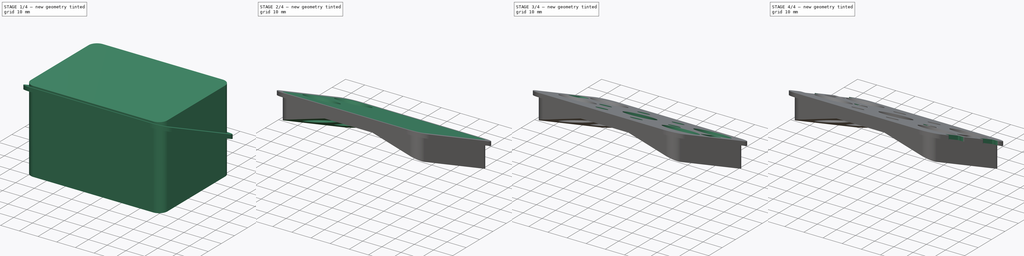
[diagram: build sequence overview — one tinted view per stage of 4, left to right]
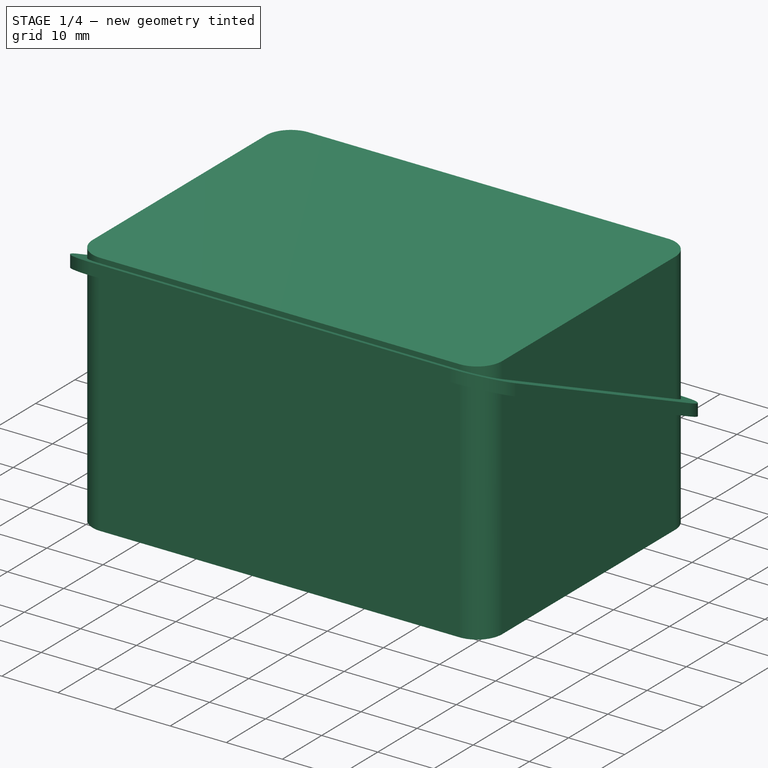
[diagram: stage 1 of 4 — iso view after this stage's code; geometry added in this stage tinted green]
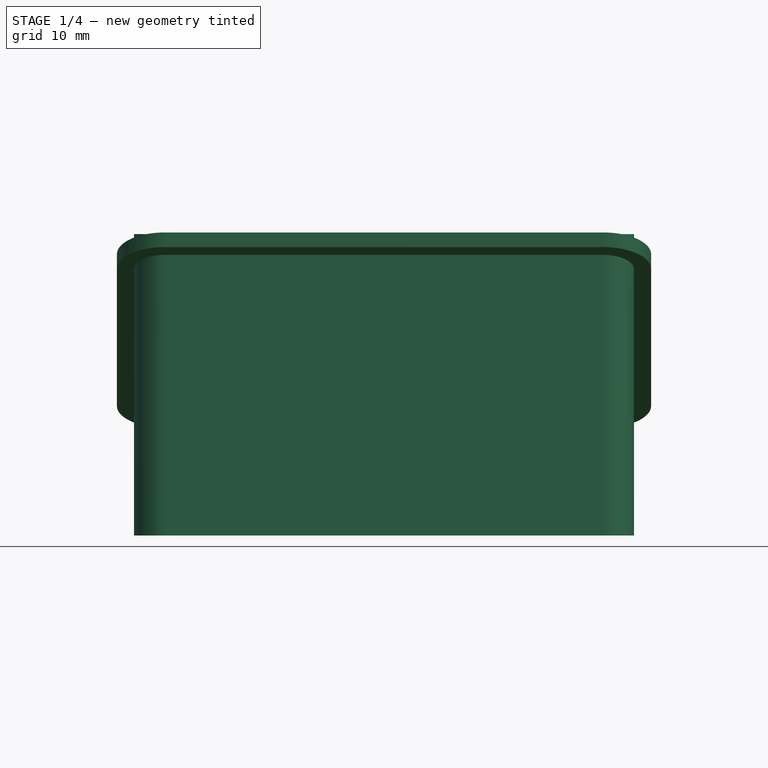
[diagram: stage 1 of 4 — front view after this stage's code; geometry added in this stage tinted green]
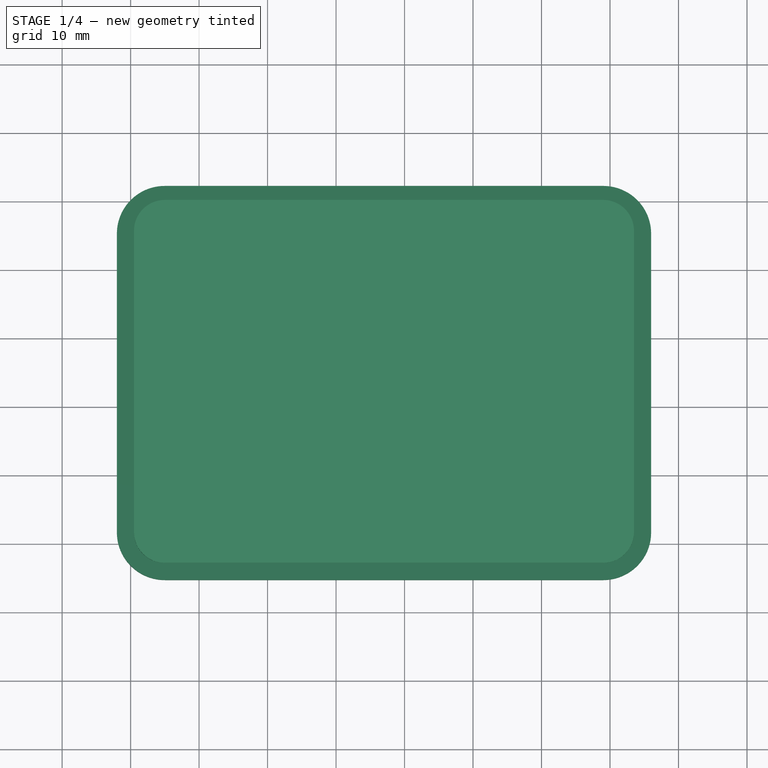
[diagram: stage 1 of 4 — top view after this stage's code; geometry added in this stage tinted green]
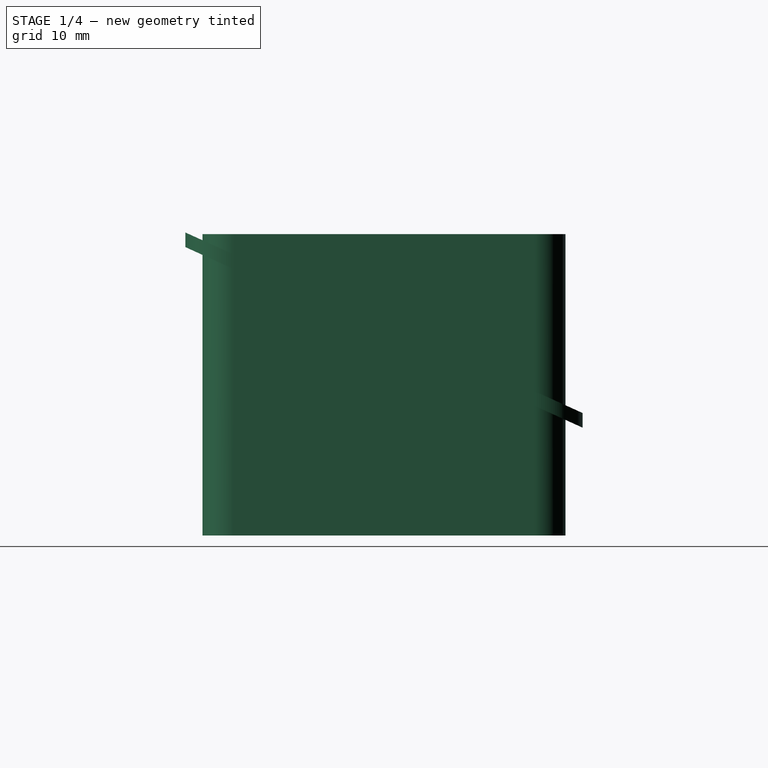
[diagram: stage 1 of 4 — right view after this stage's code; geometry added in this stage tinted green]
FCSTD DOCUMENT  (FreeCAD 0.18R4 (GitTag))
Label: Sensormount
License: CreativeCommons Attribution-NonCommercial
LicenseURL: http://creativecommons.org/licenses/by-nc/4.0/
objects: Sketcher::SketchObject×12, PartDesign::Pocket×10, PartDesign::Pad×2, PartDesign::Plane×1, PartDesign::Fillet×1, PartDesign::Body×1
note: 39 computed .brp shape members not serialized (recipe doc carries the construction recipe); baked Part::Feature solids carry a one-line shape summary decoded from their .brp

FEATURE [Sketcher::SketchObject] Sketch074
  AttachmentOffset = pos=(0,0,44.25) rot=(0,0,1;0rad)
  MapMode = 5
  Placement = pos=(0,0,44.25) rot=(0,0,1;0rad)
  Support = -> [XY_Plane018]
  sketch-geometry (8):
    g0: LineSegment StartX=25 StartY=4 StartZ=0 EndX=89 EndY=4 EndZ=0
    g1: LineSegment StartX=96 StartY=11 StartZ=0 EndX=96 EndY=55 EndZ=0
    g2: LineSegment StartX=89 StartY=62 StartZ=0 EndX=25 EndY=62 EndZ=0
    g3: LineSegment StartX=18 StartY=55 StartZ=0 EndX=18 EndY=11 EndZ=0
    g4: ArcOfCircle CenterX=25 CenterY=55 CenterZ=0 NormalX=0 NormalY=0 NormalZ=1 AngleXU=0 Radius=7 StartAngle=1.5708 EndAngle=3.14159
    g5: ArcOfCircle CenterX=89 CenterY=55 CenterZ=0 NormalX=0 NormalY=0 NormalZ=1 AngleXU=0 Radius=7 StartAngle=0 EndAngle=1.5708
    g6: ArcOfCircle CenterX=89 CenterY=11 CenterZ=0 NormalX=0 NormalY=0 NormalZ=1 AngleXU=0 Radius=7 StartAngle=4.71239 EndAngle=6.28319
    g7: ArcOfCircle CenterX=25 CenterY=11 CenterZ=0 NormalX=0 NormalY=0 NormalZ=1 AngleXU=0 Radius=7 StartAngle=3.14159 EndAngle=4.71239
  constraints (20):
    c: Horizontal(g0)
    c: Horizontal(g2)
    c: Vertical(g1)
    c: Vertical(g3)
    c: Tangent(g3,g4) = -1.5708
    c: Tangent(g2,g4) = -1.5708
    c: Tangent(g2,g5) = -1.5708
    c: Tangent(g1,g5) = -1.5708
    c: Tangent(g1,g6) = -1.5708
    c: Tangent(g0,g6) = -1.5708
    c: Tangent(g0,g7) = -1.5708
    c: Tangent(g3,g7) = -1.5708
    c: Radius(g4) = 7
    c: Equal(g4,g5)
    c: Equal(g5,g6)
    c: Equal(g6,g7)
    c: DistanceX(g3,g1) = 78
    c: DistanceY(g0,g2) = 58
    c: DistanceX(g-1,g7) = 25
    c: DistanceY(g-1,g7) = 11
FEATURE [Sketcher::SketchObject] Sketch076
  MapMode = 5
  Support = -> [XY_Plane018]
  sketch-geometry (8):
    g0: ArcOfCircle CenterX=25 CenterY=11 CenterZ=0 NormalX=0 NormalY=0 NormalZ=1 AngleXU=0 Radius=4.5 StartAngle=3.14159 EndAngle=4.71239
    g1: ArcOfCircle CenterX=25 CenterY=55 CenterZ=0 NormalX=0 NormalY=0 NormalZ=1 AngleXU=0 Radius=4.5 StartAngle=1.5708 EndAngle=3.14159
    g2: ArcOfCircle CenterX=89 CenterY=55 CenterZ=0 NormalX=0 NormalY=0 NormalZ=1 AngleXU=0 Radius=4.5 StartAngle=7e-16 EndAngle=1.5708
    g3: ArcOfCircle CenterX=89 CenterY=11 CenterZ=0 NormalX=0 NormalY=0 NormalZ=1 AngleXU=0 Radius=4.5 StartAngle=4.71239 EndAngle=6.28319
    g4: LineSegment StartX=25 StartY=59.5 StartZ=0 EndX=89 EndY=59.5 EndZ=0
    g5: LineSegment StartX=20.5 StartY=55 StartZ=0 EndX=20.5 EndY=11 EndZ=0
    g6: LineSegment StartX=25 StartY=6.5 StartZ=0 EndX=89 EndY=6.5 EndZ=0
    g7: LineSegment StartX=93.5 StartY=11 StartZ=0 EndX=93.5 EndY=55 EndZ=0
  constraints (20):
    c: Horizontal(g4)
    c: Vertical(g5)
    c: Horizontal(g6)
    c: Vertical(g7)
    c: Equal(g1,g2)
    c: Equal(g2,g3)
    c: Equal(g3,g0)
    c: Radius(g2) = 4.5
    c: Tangent(g7,g2) = -1.5708
    c: Tangent(g1,g4) = 1.5708
    c: Tangent(g5,g1) = -1.5708
    c: Tangent(g4,g2) = 1.5708
    c: Tangent(g7,g3) = -1.5708
    c: Tangent(g6,g3) = -1.5708
    c: Tangent(g5,g0) = -1.5708
    c: Tangent(g6,g0) = -1.5708
    c: DistanceX(g4,g4) = 64
    c: DistanceY(g7,g7) = 44
    c: DistanceX(g-1,g0) = 25
    c: DistanceY(g-1,g0) = 11
FEATURE [Sketcher::SketchObject] Sketch103
  AttachmentOffset = pos=(0,0,32) rot=(0,0,1;0rad)
  MapMode = 5
  Placement = pos=(0,0,32) rot=(0,0,1;0rad)
  Support = -> [XY_Plane018]
  sketch-geometry (9):
    g0: LineSegment [constr] StartX=66 StartY=48.5885 StartZ=0 EndX=48 EndY=48.5885 EndZ=0
    g1: LineSegment [constr] StartX=48 StartY=48.5885 StartZ=0 EndX=39 EndY=33 EndZ=0
    g2: LineSegment [constr] StartX=39 StartY=33 StartZ=0 EndX=48 EndY=17.4115 EndZ=0
    g3: LineSegment [constr] StartX=48 StartY=17.4115 StartZ=0 EndX=66 EndY=17.4115 EndZ=0
    g4: LineSegment [constr] StartX=66 StartY=17.4115 StartZ=0 EndX=75 EndY=33 EndZ=0
    g5: LineSegment [constr] StartX=75 StartY=33 StartZ=0 EndX=66 EndY=48.5885 EndZ=0
    g6: Circle [constr] CenterX=57 CenterY=33 CenterZ=0 NormalX=0 NormalY=0 NormalZ=1 AngleXU=0 Radius=18
    g7: Circle CenterX=39 CenterY=33 CenterZ=0 NormalX=0 NormalY=0 NormalZ=1 AngleXU=0 Radius=3.2
    g8: Circle CenterX=75 CenterY=33 CenterZ=0 NormalX=0 NormalY=0 NormalZ=1 AngleXU=0 Radius=3.2
  constraints (21):
    c: Coincident(g0,g1)
    c: Coincident(g1,g2)
    c: Coincident(g2,g3)
    c: Coincident(g3,g4)
    c: Coincident(g4,g5)
    c: Coincident(g5,g0)
    c: Equal(g0, g1-g5) x5
    c: PointOnObject(g0,g6)
    c: PointOnObject(g1,g6)
    c: PointOnObject(g2,g6)
    c: PointOnObject(g3,g6)
    c: PointOnObject(g4,g6)
    c: PointOnObject(g5,g6)
    c: Horizontal(g0)
    c: DistanceX(g0,g0) = 18
    c: DistanceX(g-1,g6) = 57
    c: DistanceY(g-1,g6) = 33
    c: Coincident(g7,g1)
    c: Coincident(g8,g4)
    c: Radius(g8) = 3.2
    c: Equal(g8,g7)
FEATURE [Sketcher::SketchObject] Sketch083
  MapMode = 5
  Support = -> [XY_Plane018]
  sketch-geometry (14):
    g0: Circle CenterX=57 CenterY=33 CenterZ=0 NormalX=0 NormalY=0 NormalZ=1 AngleXU=0 Radius=7.5
    g1: LineSegment [constr] StartX=48 StartY=48.5885 StartZ=0 EndX=39 EndY=33 EndZ=0
    g2: LineSegment [constr] StartX=39 StartY=33 StartZ=0 EndX=48 EndY=17.4115 EndZ=0
    g3: LineSegment [constr] StartX=48 StartY=17.4115 StartZ=0 EndX=66 EndY=17.4115 EndZ=0
    g4: LineSegment [constr] StartX=66 StartY=17.4115 StartZ=0 EndX=75 EndY=33 EndZ=0
    g5: LineSegment [constr] StartX=75 StartY=33 StartZ=0 EndX=66 EndY=48.5885 EndZ=0
    g6: LineSegment [constr] StartX=66 StartY=48.5885 StartZ=0 EndX=48 EndY=48.5885 EndZ=0
    g7: Circle [constr] CenterX=57 CenterY=33 CenterZ=0 NormalX=0 NormalY=0 NormalZ=1 AngleXU=0 Radius=18
    g8: Circle CenterX=48 CenterY=48.5885 CenterZ=0 NormalX=0 NormalY=0 NormalZ=1 AngleXU=0 Radius=2.75
    g9: Circle CenterX=66 CenterY=48.5885 CenterZ=0 NormalX=0 NormalY=0 NormalZ=1 AngleXU=0 Radius=2.75
    g10: Circle CenterX=75 CenterY=33 CenterZ=0 NormalX=0 NormalY=0 NormalZ=1 AngleXU=0 Radius=2.75
    g11: Circle CenterX=39 CenterY=33 CenterZ=0 NormalX=0 NormalY=0 NormalZ=1 AngleXU=0 Radius=2.75
    g12: Circle CenterX=48 CenterY=17.4115 CenterZ=0 NormalX=0 NormalY=0 NormalZ=1 AngleXU=0 Radius=2.75
    g13: Circle CenterX=66 CenterY=17.4115 CenterZ=0 NormalX=0 NormalY=0 NormalZ=1 AngleXU=0 Radius=2.75
  constraints (31):
    c: DistanceY(g-1,g0) = 33
    c: DistanceX(g-1,g0) = 57
    c: Radius(g0) = 7.5
    c: Coincident(g1,g2)
    c: Coincident(g2,g3)
    c: Coincident(g3,g4)
    c: Coincident(g4,g5)
    c: Coincident(g5,g6)
    c: Coincident(g6,g1)
    c: Equal(g1, g2-g6) x5
    c: PointOnObject(g1,g7)
    c: PointOnObject(g2,g7)
    c: PointOnObject(g3,g7)
    c: PointOnObject(g4,g7)
    c: PointOnObject(g5,g7)
    c: PointOnObject(g6,g7)
    c: Coincident(g7,g0)
    c: DistanceX(g6,g6) = 18
    c: Coincident(g8,g1)
    c: Coincident(g9,g5)
    c: Coincident(g10,g4)
    c: Coincident(g11,g1)
    c: Coincident(g12,g2)
    c: Coincident(g13,g3)
    c: Equal(g10,g9)
    c: Equal(g9,g8)
    c: Equal(g8,g11)
    c: Equal(g11,g12)
    c: Equal(g12,g13)
    c: Radius(g10) = 2.75
    c: Horizontal(g6)
FEATURE [Sketcher::SketchObject] Sketch142
  AttachmentOffset = pos=(0,0,40) rot=(0,0,1;0rad)
  MapMode = 5
  Placement = pos=(0,0,40) rot=(0,0,1;0rad)
  Support = -> [XY_Plane018]
  sketch-geometry (24):
    g0: LineSegment StartX=18 StartY=17.4 StartZ=0 EndX=20 EndY=17.4 EndZ=0
    g1: LineSegment StartX=20.5 StartY=17.9 StartZ=0 EndX=20.5 EndY=26.9 EndZ=0
    g2: LineSegment StartX=20 StartY=27.4 StartZ=0 EndX=18 EndY=27.4 EndZ=0
    g3: LineSegment StartX=18 StartY=27.4 StartZ=0 EndX=18 EndY=17.4 EndZ=0
    g4: LineSegment StartX=18 StartY=43 StartZ=0 EndX=20 EndY=43 EndZ=0
    g5: LineSegment StartX=20.5 StartY=43.5 StartZ=0 EndX=20.5 EndY=52.5 EndZ=0
    g6: LineSegment StartX=20 StartY=53 StartZ=0 EndX=18 EndY=53 EndZ=0
    g7: LineSegment StartX=18 StartY=53 StartZ=0 EndX=18 EndY=43 EndZ=0
    g8: LineSegment StartX=96 StartY=53 StartZ=0 EndX=94 EndY=53 EndZ=0
    g9: LineSegment StartX=93.5 StartY=52.5 StartZ=0 EndX=93.5 EndY=43.5 EndZ=0
    g10: LineSegment StartX=94 StartY=43 StartZ=0 EndX=96 EndY=43 EndZ=0
    g11: LineSegment StartX=96 StartY=43 StartZ=0 EndX=96 EndY=53 EndZ=0
    g12: LineSegment StartX=96 StartY=17.4 StartZ=0 EndX=94 EndY=17.4 EndZ=0
    g13: LineSegment StartX=93.5 StartY=17.9 StartZ=0 EndX=93.5 EndY=26.9 EndZ=0
    g14: LineSegment StartX=94 StartY=27.4 StartZ=0 EndX=96 EndY=27.4 EndZ=0
    g15: LineSegment StartX=96 StartY=27.4 StartZ=0 EndX=96 EndY=17.4 EndZ=0
    g16: ArcOfCircle CenterX=20 CenterY=26.9 CenterZ=0 NormalX=0 NormalY=0 NormalZ=1 AngleXU=0 Radius=0.5 StartAngle=0 EndAngle=1.5708
    g17: ArcOfCircle CenterX=20 CenterY=17.9 CenterZ=0 NormalX=0 NormalY=0 NormalZ=1 AngleXU=0 Radius=0.5 StartAngle=4.71239 EndAngle=6.28319
    g18: ArcOfCircle CenterX=20 CenterY=52.5 CenterZ=0 NormalX=0 NormalY=0 NormalZ=1 AngleXU=0 Radius=0.5 StartAngle=2.5e-15 EndAngle=1.5708
    g19: ArcOfCircle CenterX=20 CenterY=43.5 CenterZ=0 NormalX=0 NormalY=0 NormalZ=1 AngleXU=0 Radius=0.5 StartAngle=4.71239 EndAngle=6.28319
    g20: ArcOfCircle CenterX=94 CenterY=52.5 CenterZ=0 NormalX=0 NormalY=0 NormalZ=1 AngleXU=0 Radius=0.5 StartAngle=1.5708 EndAngle=3.14159
    g21: ArcOfCircle CenterX=94 CenterY=43.5 CenterZ=0 NormalX=0 NormalY=0 NormalZ=1 AngleXU=0 Radius=0.5 StartAngle=3.14159 EndAngle=4.71239
    g22: ArcOfCircle CenterX=94 CenterY=26.9 CenterZ=0 NormalX=0 NormalY=0 NormalZ=1 AngleXU=0 Radius=0.5 StartAngle=1.5708 EndAngle=3.14159
    g23: ArcOfCircle CenterX=94 CenterY=17.9 CenterZ=0 NormalX=0 NormalY=0 NormalZ=1 AngleXU=0 Radius=0.5 StartAngle=3.14159 EndAngle=4.71239
  constraints (64):
    c: Coincident(g2,g3)
    c: Coincident(g3,g0)
    c: Horizontal(g0)
    c: Horizontal(g2)
    c: Vertical(g1)
    c: Vertical(g3)
    c: Coincident(g6,g7)
    c: Coincident(g7,g4)
    c: Horizontal(g4)
    c: Horizontal(g6)
    c: Vertical(g5)
    c: Vertical(g7)
    c: Coincident(g10,g11)
    c: Coincident(g11,g8)
    c: Horizontal(g8)
    c: Horizontal(g10)
    c: Vertical(g9)
    c: Vertical(g11)
    c: Coincident(g14,g15)
    c: Coincident(g15,g12)
    c: Horizontal(g12)
    c: Horizontal(g14)
    c: Vertical(g13)
    c: Vertical(g15)
    c: Equal(g10,g14)
    c: Equal(g5,g1)
    c: Equal(g1,g9)
    c: Equal(g9,g13)
    c: Horizontal(g1,g13)
    c: Vertical(g13,g9)
    c: DistanceY(g-1,g0) = 17.4
    c: DistanceY(g3,g3) = 10
    c: DistanceY(g2,g4) = 15.6
    c: DistanceX(g-1,g0) = 18
    c: Tangent(g2,g16) = -1.5708
    c: Tangent(g1,g16) = -1.5708
    c: Tangent(g0,g17) = -1.5708
    c: Tangent(g1,g17) = -1.5708
    c: Equal(g17,g16)
    c: Radius(g16) = 0.5
    c: DistanceX(g2,g1) = 2.5
    c: Tangent(g6,g18) = -1.5708
    c: Tangent(g5,g18) = -1.5708
    c: Tangent(g5,g19) = -1.5708
    c: Tangent(g4,g19) = -1.5708
    c: Equal(g16,g19)
    c: Equal(g19,g18)
    c: Tangent(g9,g20) = -1.5708
    c: Tangent(g8,g20) = -1.5708
    c: Tangent(g9,g21) = -1.5708
    c: Tangent(g10,g21) = -1.5708
    c: Equal(g21,g20)
    c: Equal(g20,g18)
    c: Tangent(g13,g22) = 1.5708
    c: Tangent(g14,g22) = 1.5708
    c: Tangent(g13,g23) = 1.5708
    c: Tangent(g12,g23) = 1.5708
    c: Equal(g23,g22)
    c: Equal(g22,g21)
    c: Equal(g4,g2)
    c: Vertical(g4,g2)
    c: Equal(g12,g0)
    c: DistanceX(g0,g12) = 74
    c: Horizontal(g10,g4)
FEATURE [PartDesign::Pad] Pad033  label="Baseblock"
  Length = 28.5
  Length2 = 100
  Profile = -> Sketch074
  Reversed = true
  Type = 0
FEATURE [Sketcher::SketchObject] Sketch075
  MapMode = 5
  Placement = pos=(18,0,0) rot=(0.57735,-0.57735,-0.57735;2.0944rad)
  Support = -> [Pad033]
  sketch-geometry (6):
    g0: LineSegment StartX=-62 StartY=15.75 StartZ=0 EndX=-4 EndY=42.1137 EndZ=0
    g1: LineSegment StartX=-4 StartY=42.1137 StartZ=0 EndX=-4 EndY=15.75 EndZ=0
    g2: LineSegment StartX=-4 StartY=15.75 StartZ=0 EndX=-62 EndY=15.75 EndZ=0
    g3: LineSegment StartX=-62 StartY=17.8863 StartZ=0 EndX=-4 EndY=44.25 EndZ=0
    g4: LineSegment StartX=-4 StartY=44.25 StartZ=0 EndX=-62 EndY=44.25 EndZ=0
    g5: LineSegment StartX=-62 StartY=44.25 StartZ=0 EndX=-62 EndY=17.8863 EndZ=0
  constraints (18):
    c: Coincident(g0,g1)
    c: Vertical(g1)
    c: Coincident(g1,g2)
    c: Coincident(g2,g0)
    c: Horizontal(g2)
    c: Coincident(g3,g4)
    c: Horizontal(g4)
    c: Coincident(g4,g5)
    c: Coincident(g5,g3)
    c: Vertical(g5)
    c: Parallel(g0,g3)
    c: Vertical(g0,g3)
    c: Vertical(g3,g0)
    c: Angle(g2,g0) = 0.426628
    c: DistanceX(g4,g4) = 58
    c: DistanceY(g1,g3) = 28.5
    c: DistanceX(g1,g-1) = 4
    c: DistanceY(g-1,g1) = 15.75
FEATURE [PartDesign::Pocket] Pocket033  label="Tilt Baseplate"
  BaseFeature = -> Pad033
  Length = 80
  Length2 = 100
  Profile = -> Sketch075
  Type = 0
FEATURE [PartDesign::Pad] Pad034  label="Extend Baseplate"
  BaseFeature = -> Pocket033
  Length = 44
  Length2 = 100
  Profile = -> Sketch076
  Type = 0
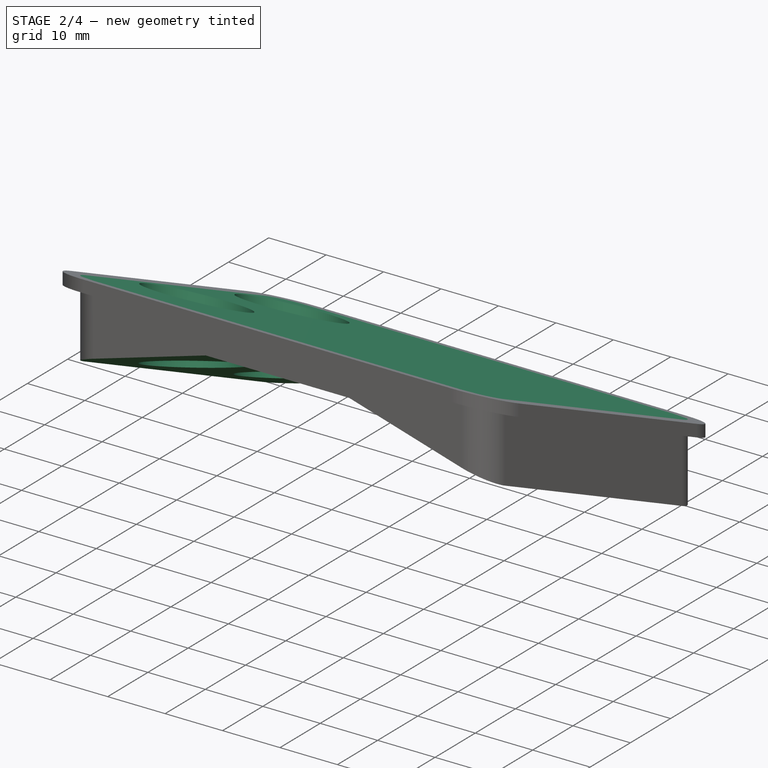
[diagram: stage 2 of 4 — iso view after this stage's code; geometry added in this stage tinted green]
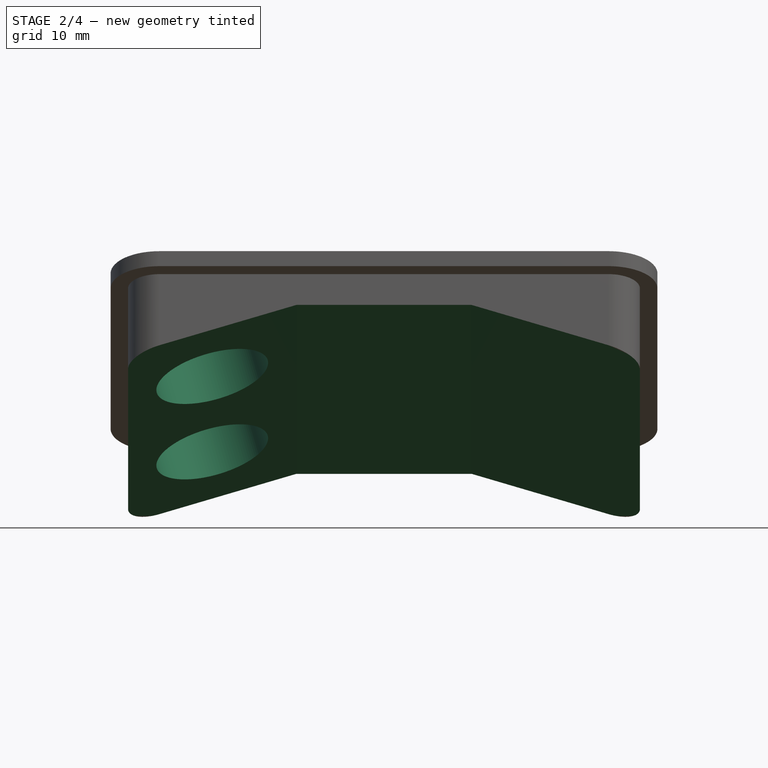
[diagram: stage 2 of 4 — front view after this stage's code; geometry added in this stage tinted green]
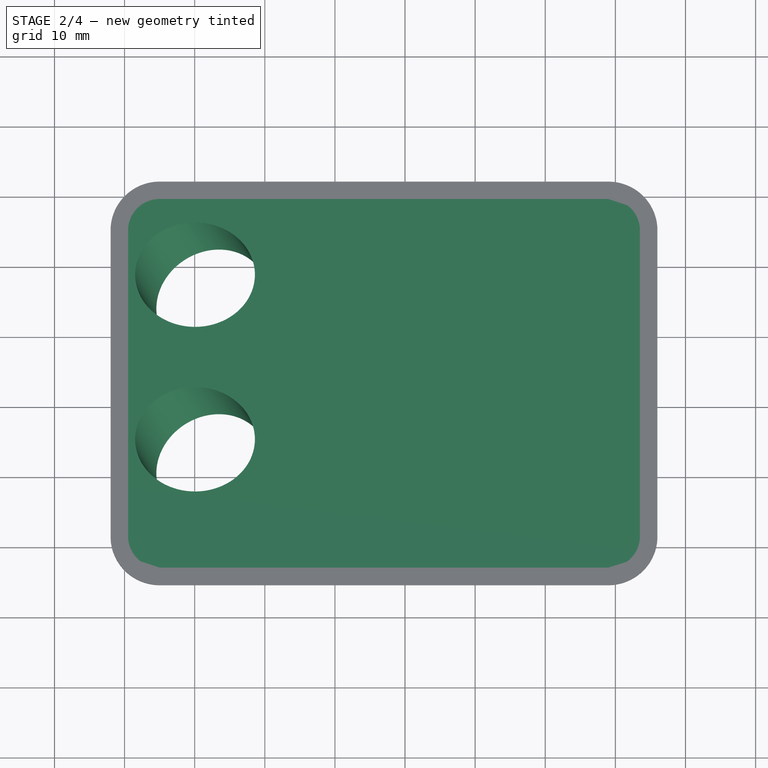
[diagram: stage 2 of 4 — top view after this stage's code; geometry added in this stage tinted green]
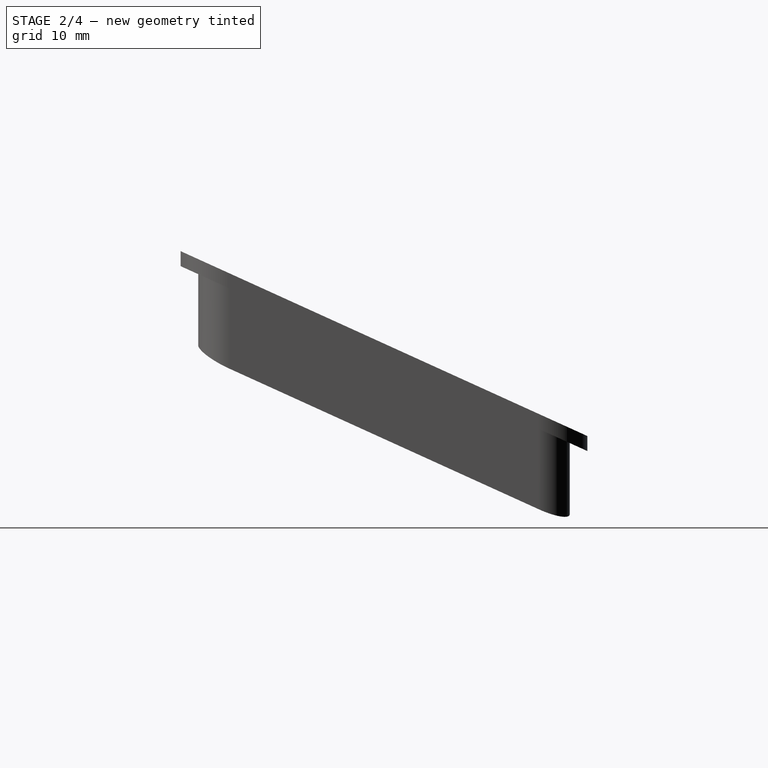
[diagram: stage 2 of 4 — right view after this stage's code; geometry added in this stage tinted green]
FEATURE [Sketcher::SketchObject] Sketch077
  ExternalGeometry = -> [Pad034]
  MapMode = 5
  Placement = pos=(93.5,0,0) rot=(0.57735,0.57735,0.57735;2.0944rad)
  Support = -> [Pad034]
  sketch-geometry (4):
    g0: LineSegment StartX=6.5 StartY=43.1136 StartZ=0 EndX=59.5 EndY=19.0227 EndZ=0
    g1: LineSegment StartX=59.5 StartY=19.0227 StartZ=0 EndX=59.5 EndY=44 EndZ=0
    g2: LineSegment StartX=59.5 StartY=44 StartZ=0 EndX=6.5 EndY=44 EndZ=0
    g3: LineSegment StartX=6.5 StartY=44 StartZ=0 EndX=6.5 EndY=43.1136 EndZ=0
  constraints (10):
    c: Coincident(g0,g1)
    c: Vertical(g1)
    c: Coincident(g1,g2)
    c: Horizontal(g2)
    c: Coincident(g2,g3)
    c: Coincident(g3,g0)
    c: Parallel(g0,g-3)
    c: DistanceX(g2,g2) = 53
    c: Coincident(g2,g-4)
    c: Coincident(g0,g-4)
FEATURE [PartDesign::Pocket] Pocket034  label="Remove Baseplate"
  BaseFeature = -> Pad034
  Length = 80
  Length2 = 100
  Profile = -> Sketch077
  Type = 0
FEATURE [PartDesign::Plane] DatumPlane009  label="Plane along tilt"
  Length = 124.323
  MapMode = 7
  Placement = pos=(96,11,38.9319) rot=(1,0,0;1.14417rad)
  ResizeMode = 0
  Support = -> [Pocket034]
  Width = 97.5041
FEATURE [Sketcher::SketchObject] Sketch078
  MapMode = 5
  Placement = pos=(96,11,38.9319) rot=(1,0,0;1.14417rad)
  Support = -> [DatumPlane009]
  sketch-geometry (6):
    g0: LineSegment StartX=-75.5 StartY=-10.4308 StartZ=0 EndX=-51.5 EndY=-4 EndZ=0
    g1: LineSegment StartX=-51.5 StartY=-4 StartZ=0 EndX=-26.5 EndY=-4 EndZ=0
    g2: LineSegment StartX=-26.5 StartY=-4 StartZ=0 EndX=-2.5 EndY=-10.4308 EndZ=0
    g3: LineSegment StartX=-2.5 StartY=-10.4308 StartZ=0 EndX=-2.5 EndY=-38 EndZ=0
    g4: LineSegment StartX=-2.5 StartY=-38 StartZ=0 EndX=-75.5 EndY=-38 EndZ=0
    g5: LineSegment StartX=-75.5 StartY=-38 StartZ=0 EndX=-75.5 EndY=-10.4308 EndZ=0
  constraints (18):
    c: Coincident(g0,g1)
    c: Horizontal(g1)
    c: Coincident(g1,g2)
    c: Coincident(g2,g3)
    c: Vertical(g3)
    c: Coincident(g3,g4)
    c: Horizontal(g4)
    c: Coincident(g4,g5)
    c: Coincident(g5,g0)
    c: Vertical(g5)
    c: DistanceX(g4,g4) = 73
    c: DistanceX(g2,g-1) = 2.5
    c: Equal(g2,g0)
    c: Angle(g5,g0) = 1.8326
    c: Equal(g5,g3)
    c: DistanceY(g3,g-1) = 38
    c: DistanceX(g1,g1) = 25
    c: DistanceY(g1,g-1) = 4
FEATURE [PartDesign::Pocket] Pocket035  label="Tilt Sensors"
  BaseFeature = -> Pocket034
  Length = 65
  Length2 = 100
  Profile = -> Sketch078
  Type = 4
FEATURE [Sketcher::SketchObject] Sketch079
  ExternalGeometry = -> [Pocket035]
  MapMode = 5
  Placement = pos=(-6.01759,9.29318,20.445) rot=(0.991049,0.028262,0.130474;2.71867rad)
  Support = -> [Pocket035]
  sketch-geometry (8):
    g0: LineSegment [constr] StartX=52.2997 StartY=9.221 StartZ=0 EndX=52.2997 EndY=-19.8882 EndZ=0
    g1: LineSegment [constr] StartX=52.2997 StartY=-19.8882 StartZ=0 EndX=52.2997 EndY=-48.9973 EndZ=0
    g2: Circle CenterX=39.8763 CenterY=-8.34971 CenterZ=0 NormalX=0 NormalY=0 NormalZ=1 AngleXU=0 Radius=8.25
    g3: Circle CenterX=39.8763 CenterY=-34.3497 CenterZ=0 NormalX=0 NormalY=0 NormalZ=1 AngleXU=0 Radius=8.25
    g4: LineSegment [constr] StartX=39.8763 StartY=-8.34971 StartZ=0 EndX=39.8763 EndY=-21.3497 EndZ=0
    g5: LineSegment [constr] StartX=39.8763 StartY=-21.3497 StartZ=0 EndX=39.8763 EndY=-34.3497 EndZ=0
    g6: LineSegment [constr] StartX=52.2997 StartY=-19.8882 StartZ=0 EndX=39.8763 EndY=-21.3497 EndZ=0
    g7: LineSegment [constr] StartX=39.8763 StartY=-21.3497 StartZ=0 EndX=27.453 EndY=-22.8113 EndZ=0
  constraints (21):
    c: Coincident(g0,g-3)
    c: Vertical(g0)
    c: Coincident(g1,g-4)
    c: Equal(g1,g0)
    c: Radius(g2) = 8.25
    c: Equal(g3,g2)
    c: Coincident(g4,g2)
    c: Coincident(g5,g4)
    c: Coincident(g5,g3)
    c: Vertical(g5)
    c: Vertical(g4)
    c: Equal(g5,g4)
    c: DistanceY(g3,g2) = 26
    c: Coincident(g6,g0)
    c: Coincident(g6,g4)
    c: Coincident(g7,g4)
    c: Tangent(g7,g6)
    c: Parallel(g6,g-3)
    c: Equal(g6,g7)
    c: Coincident(g0,g1)
    c: PointOnObject(g7,g-5)
FEATURE [PartDesign::Pocket] Pocket036  label="Left Ultrasonic Sensor Holes"
  BaseFeature = -> Pocket035
  Length = 15
  Length2 = 100
  Profile = -> Sketch079
  Type = 0
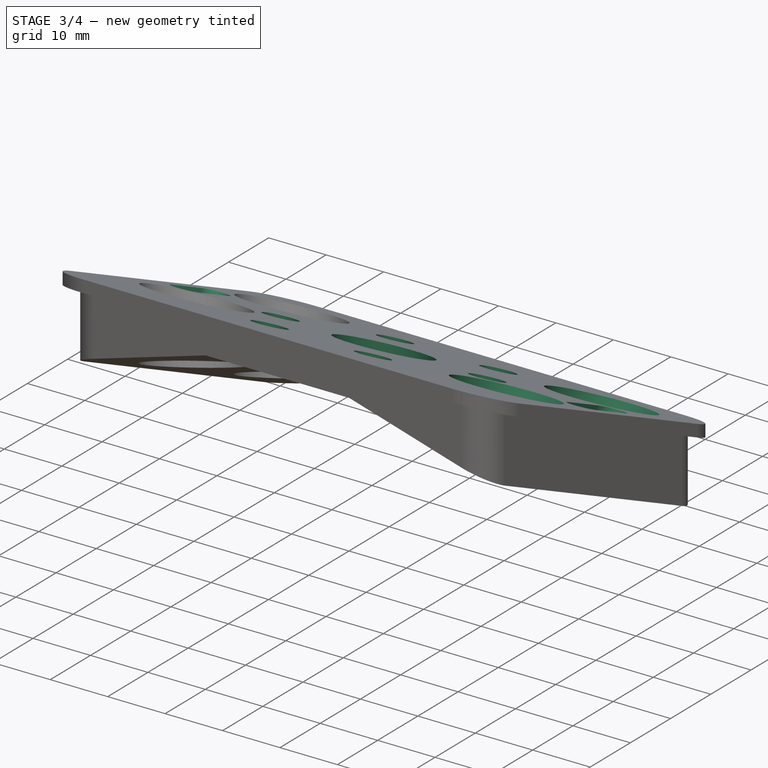
[diagram: stage 3 of 4 — iso view after this stage's code; geometry added in this stage tinted green]
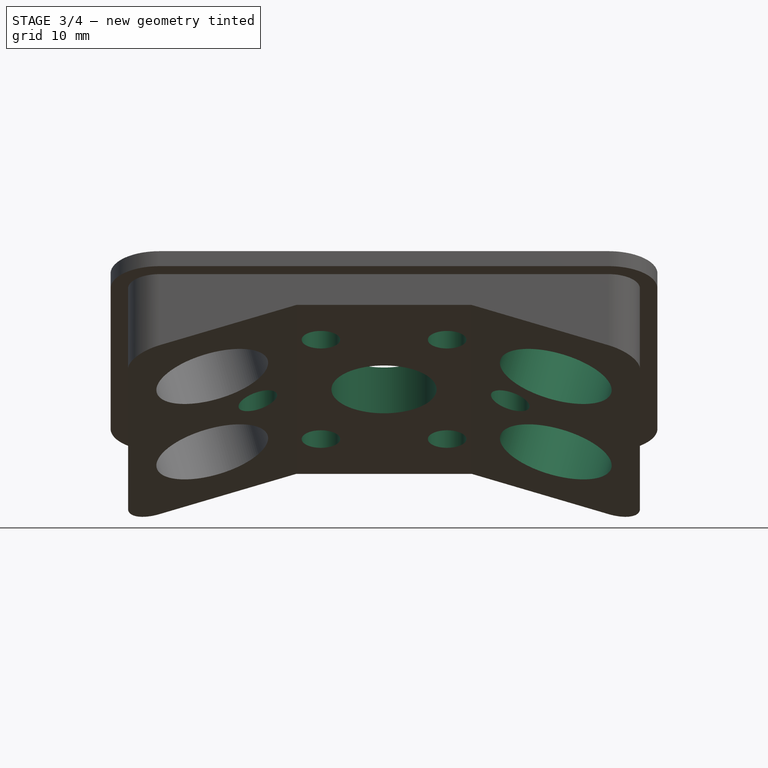
[diagram: stage 3 of 4 — front view after this stage's code; geometry added in this stage tinted green]
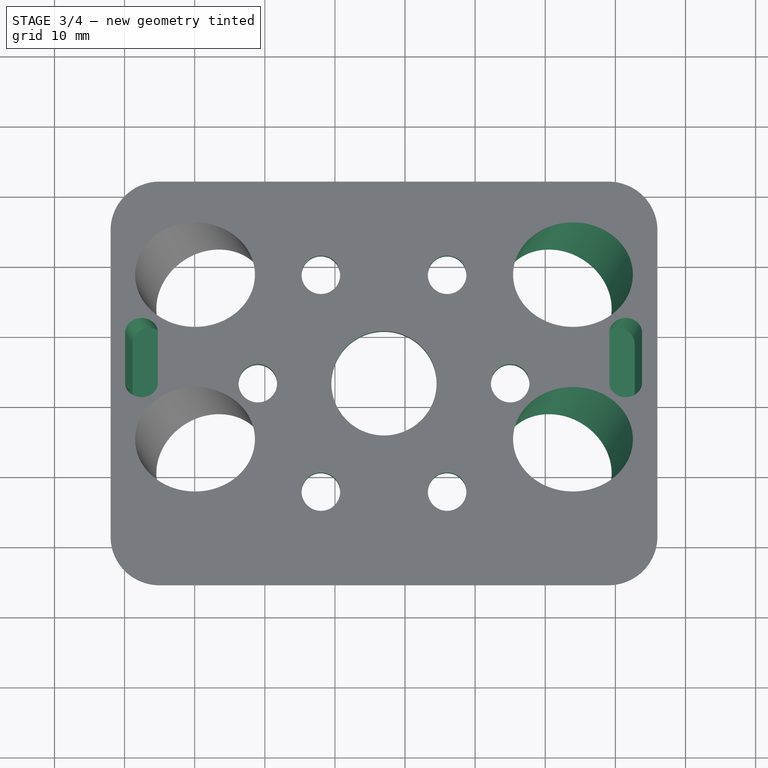
[diagram: stage 3 of 4 — top view after this stage's code; geometry added in this stage tinted green]
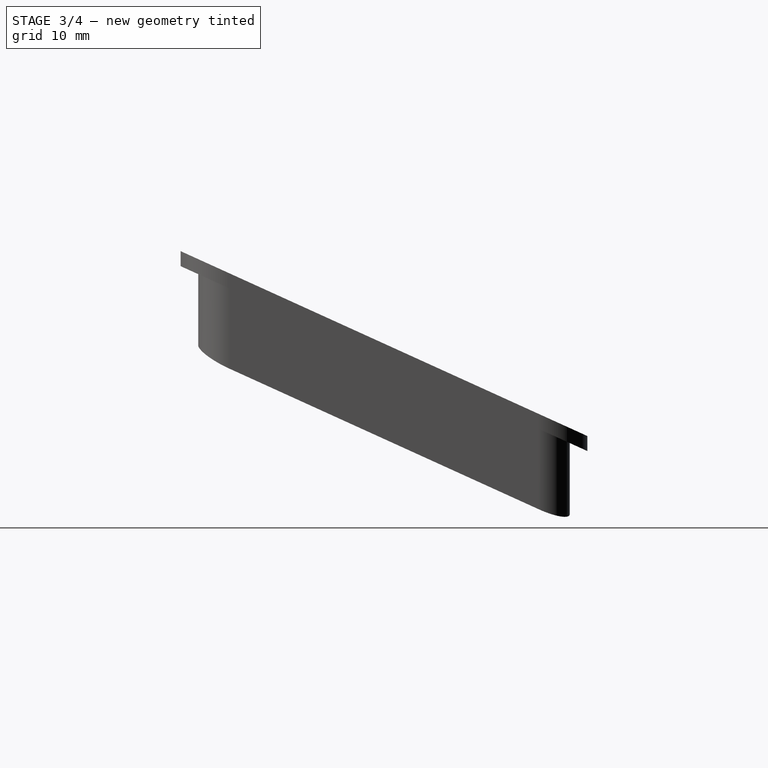
[diagram: stage 3 of 4 — right view after this stage's code; geometry added in this stage tinted green]
FEATURE [Sketcher::SketchObject] Sketch080
  ExternalGeometry = -> [Pocket036]
  MapMode = 5
  Placement = pos=(13.6541,21.0866,46.3904) rot=(0.991049,-0.028262,-0.130474;2.71867rad)
  Support = -> [Pocket036]
  sketch-geometry (8):
    g0: LineSegment [constr] StartX=57.8159 StartY=9.221 StartZ=0 EndX=57.8159 EndY=-19.8882 EndZ=0
    g1: LineSegment [constr] StartX=57.8159 StartY=-19.8882 StartZ=0 EndX=57.8159 EndY=-48.9973 EndZ=0
    g2: LineSegment [constr] StartX=57.8159 StartY=-19.8882 StartZ=0 EndX=70.2392 EndY=-21.3497 EndZ=0
    g3: LineSegment [constr] StartX=70.2392 StartY=-21.3497 StartZ=0 EndX=82.6625 EndY=-22.8113 EndZ=0
    g4: LineSegment [constr] StartX=70.2392 StartY=-21.3497 StartZ=0 EndX=70.2392 EndY=-8.34971 EndZ=0
    g5: LineSegment [constr] StartX=70.2392 StartY=-21.3497 StartZ=0 EndX=70.2392 EndY=-34.3497 EndZ=0
    g6: Circle CenterX=70.2392 CenterY=-8.34971 CenterZ=0 NormalX=0 NormalY=0 NormalZ=1 AngleXU=0 Radius=8.25
    g7: Circle CenterX=70.2392 CenterY=-34.3497 CenterZ=0 NormalX=0 NormalY=0 NormalZ=1 AngleXU=0 Radius=8.25
  constraints (21):
    c: Coincident(g0,g-3)
    c: Vertical(g0)
    c: Coincident(g1,g0)
    c: Coincident(g1,g-4)
    c: Coincident(g2,g0)
    c: Coincident(g4,g2)
    c: Vertical(g4)
    c: Coincident(g5,g2)
    c: Vertical(g5)
    c: Tangent(g3,g2) = -1.5708
    c: Equal(g0,g1)
    c: Equal(g4,g5)
    c: Parallel(g3,g-3)
    c: Equal(g2,g3)
    c: Equal(g4,g5)
    c: PointOnObject(g3,g-5)
    c: Coincident(g6,g4)
    c: Coincident(g7,g5)
    c: Radius(g7) = 8.25
    c: Equal(g7,g6)
    c: DistanceY(g7,g6) = 26
FEATURE [PartDesign::Pocket] Pocket037  label="Right Ultrasonic Sensor Holes"
  BaseFeature = -> Pocket036
  Length = 19
  Length2 = 100
  Profile = -> Sketch080
  Type = 0
FEATURE [Sketcher::SketchObject] Sketch081
  AttachmentOffset = pos=(0,0,-8) rot=(0,0,1;0rad)
  MapMode = 5
  Placement = pos=(-8.08814,12.4908,27.4797) rot=(0.991049,0.028262,0.130474;2.71867rad)
  Support = -> [Pocket037]
  sketch-geometry (4):
    g0: ArcOfCircle CenterX=32.5 CenterY=-25.25 CenterZ=0 NormalX=0 NormalY=0 NormalZ=1 AngleXU=0 Radius=2.25 StartAngle=3.14159 EndAngle=6.28319
    g1: ArcOfCircle CenterX=32.5 CenterY=-17.25 CenterZ=0 NormalX=0 NormalY=0 NormalZ=1 AngleXU=0 Radius=2.25 StartAngle=4e-16 EndAngle=3.14159
    g2: LineSegment StartX=34.75 StartY=-25.25 StartZ=0 EndX=34.75 EndY=-17.25 EndZ=0
    g3: LineSegment StartX=30.25 StartY=-25.25 StartZ=0 EndX=30.25 EndY=-17.25 EndZ=0
  constraints (10):
    c: Tangent(g0,g3) = 1.5708
    c: Tangent(g0,g2) = -1.5708
    c: Tangent(g2,g1) = -1.5708
    c: Tangent(g3,g1) = 1.5708
    c: Vertical(g2)
    c: Equal(g0,g1)
    c: Radius(g1) = 2.25
    c: DistanceY(g0,g1) = 8
    c: DistanceX(g-1,g1) = 32.5
    c: DistanceY(g1,g-1) = 17.25
FEATURE [PartDesign::Pocket] Pocket038  label="Left Ultrasonic Sensor Clock"
  BaseFeature = -> Pocket037
  Length = 14
  Length2 = 100
  Profile = -> Sketch081
  Type = 0
FEATURE [Sketcher::SketchObject] Sketch082
  AttachmentOffset = pos=(0,0,-8) rot=(0,0,1;0rad)
  MapMode = 5
  Placement = pos=(15.7247,24.2842,53.4252) rot=(0.991049,-0.028262,-0.130474;2.71867rad)
  Support = -> [Pocket038]
  sketch-geometry (4):
    g0: ArcOfCircle CenterX=77.5 CenterY=-25.25 CenterZ=0 NormalX=0 NormalY=0 NormalZ=1 AngleXU=0 Radius=2.25 StartAngle=3.14159 EndAngle=6.28319
    g1: ArcOfCircle CenterX=77.5 CenterY=-17.25 CenterZ=0 NormalX=0 NormalY=0 NormalZ=1 AngleXU=0 Radius=2.25 StartAngle=0 EndAngle=3.14159
    g2: LineSegment StartX=79.75 StartY=-25.25 StartZ=0 EndX=79.75 EndY=-17.25 EndZ=0
    g3: LineSegment StartX=75.25 StartY=-25.25 StartZ=0 EndX=75.25 EndY=-17.25 EndZ=0
  constraints (10):
    c: Tangent(g0,g3) = 1.5708
    c: Tangent(g0,g2) = -1.5708
    c: Tangent(g2,g1) = -1.5708
    c: Tangent(g3,g1) = 1.5708
    c: Vertical(g2)
    c: Equal(g0,g1)
    c: Radius(g1) = 2.25
    c: DistanceY(g0,g1) = 8
    c: DistanceY(g1,g-1) = 17.25
    c: DistanceX(g-1,g1) = 77.5
FEATURE [PartDesign::Pocket] Pocket039  label="Right Ultrasonic Sensor Clock"
  BaseFeature = -> Pocket038
  Length = 12
  Length2 = 100
  Profile = -> Sketch082
  Type = 0
FEATURE [PartDesign::Pocket] Pocket040  label="Camera and LED Holes"
  BaseFeature = -> Pocket039
  Length = 50
  Length2 = 100
  Profile = -> Sketch083
  Reversed = true
  Type = 0
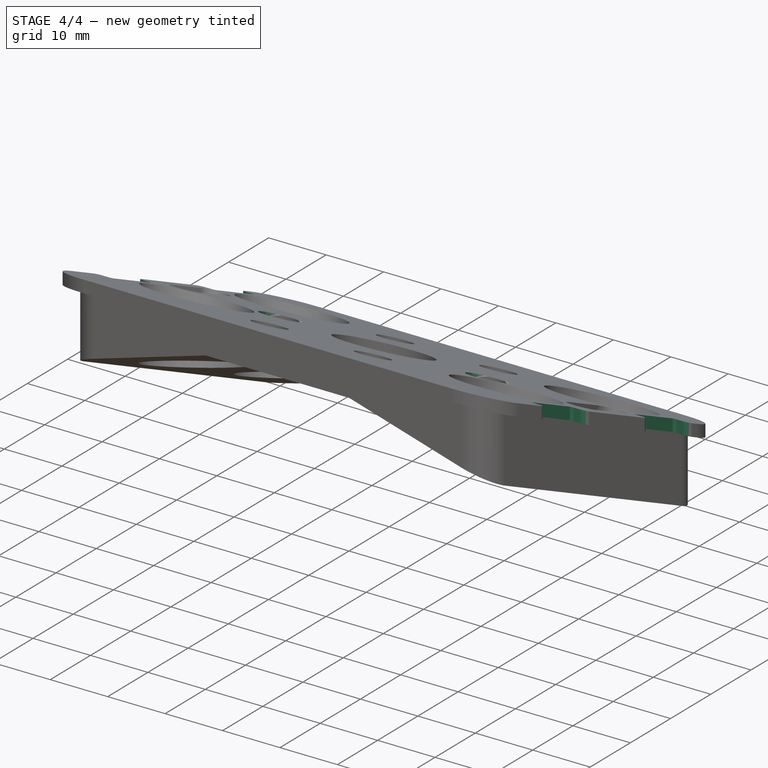
[diagram: stage 4 of 4 — iso view after this stage's code; geometry added in this stage tinted green]
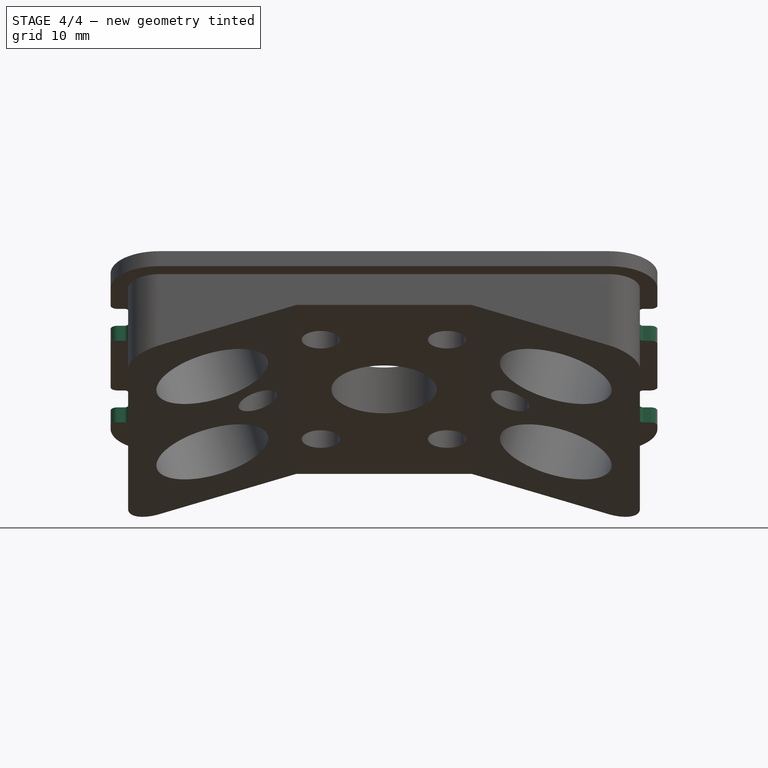
[diagram: stage 4 of 4 — front view after this stage's code; geometry added in this stage tinted green]
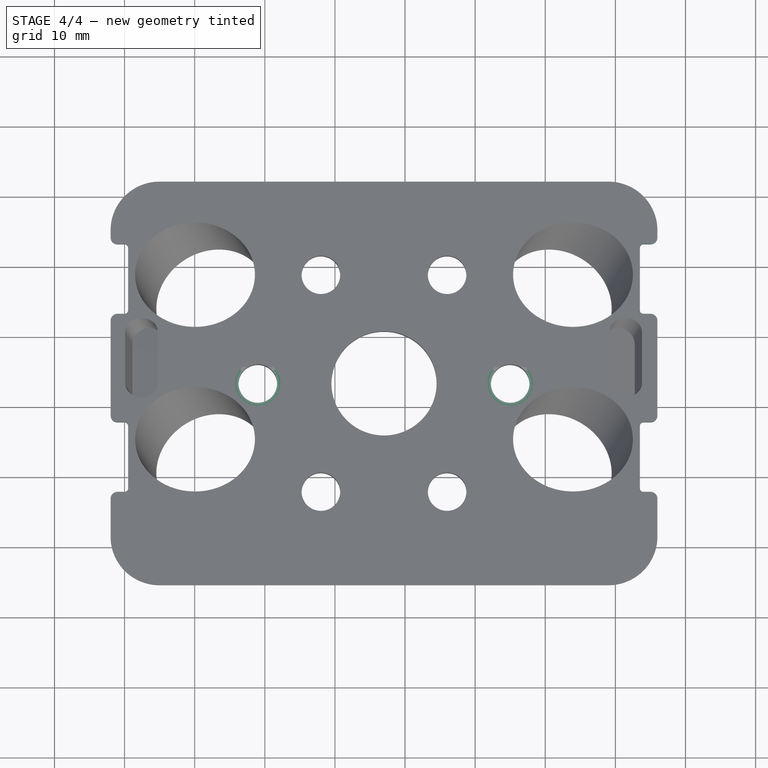
[diagram: stage 4 of 4 — top view after this stage's code; geometry added in this stage tinted green]
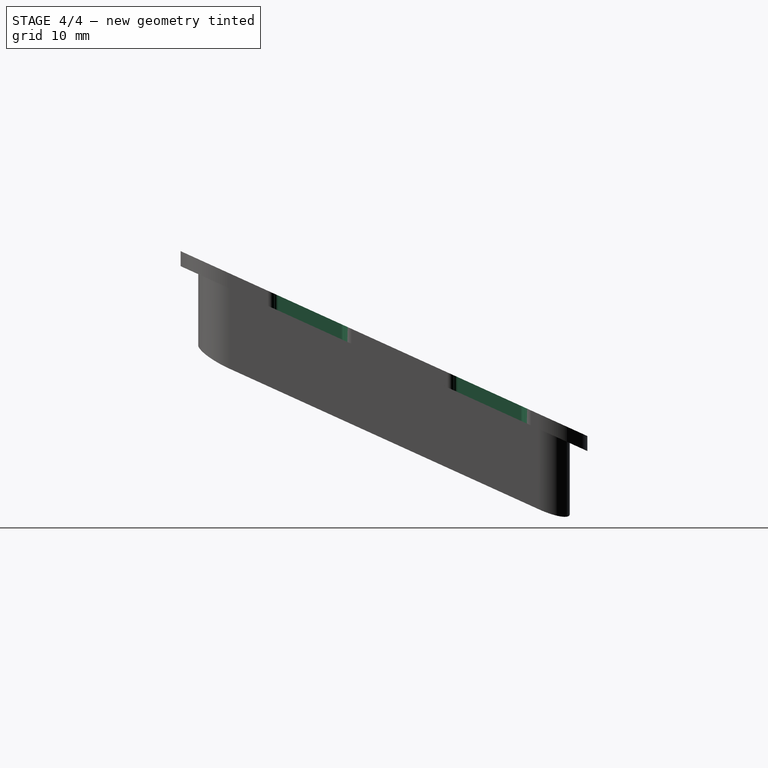
[diagram: stage 4 of 4 — right view after this stage's code; geometry added in this stage tinted green]
FEATURE [PartDesign::Pocket] Pocket059  label="Middle LED extended Pockets"
  BaseFeature = -> Pocket040
  Length = 2
  Length2 = 100
  Profile = -> Sketch103
  Type = 4
FEATURE [PartDesign::Pocket] Pocket060  label="Cutout Sensorplate Screwholes"
  BaseFeature = -> Pocket059
  Length = 40
  Length2 = 100
  Profile = -> Sketch142
  Type = 0
FEATURE [PartDesign::Fillet] Fillet001  label="Smooth Cutout"
  Base = -> Pocket060 [Edge230,Edge208,Edge206,Edge78,Edge221,Edge201,Edge199,Edge32]
  BaseFeature = -> Pocket060
  Radius = 1
FEATURE [PartDesign::Body] Body016  label="Sensormount"
  Group = -> [Sketch074,Pad033,Sketch075,Pocket033,Sketch076,Pad034,Sketch077,Pocket034,DatumPlane009,Sketch078,Pocket035,Sketch079,Pocket036,Sketch080,Pocket037,Sketch081,Pocket038,Sketch082,Pocket039,Sketch083,Pocket040,Sketch103,Pocket059,Sketch142,Pocket060,Fillet001]
  Origin = -> Origin018
  Placement = pos=(0,0,0) rot=(1,0,0;3.56808rad)
  Tip = -> Fillet001
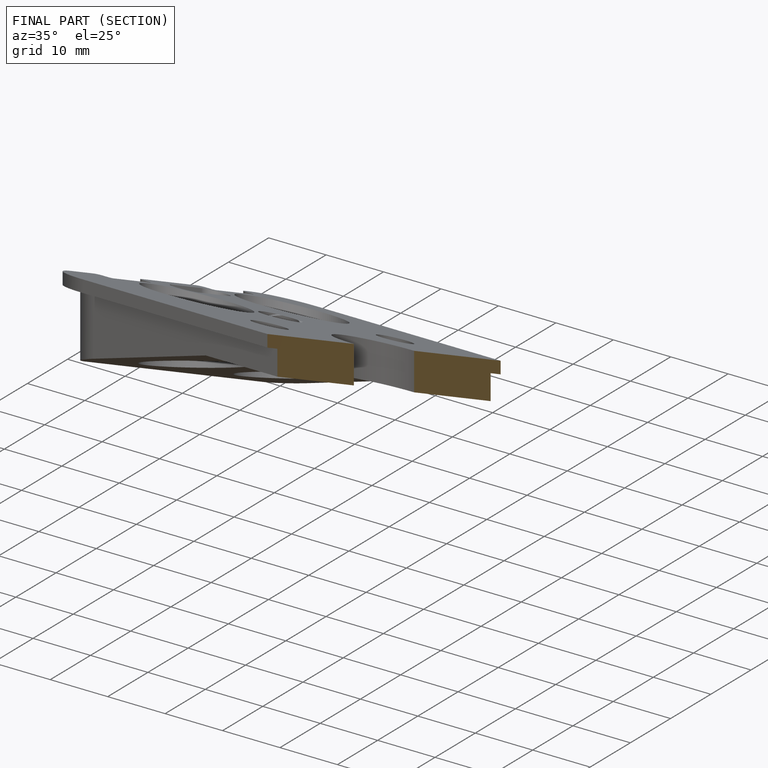
[diagram: finished part — half-section view (interior)]
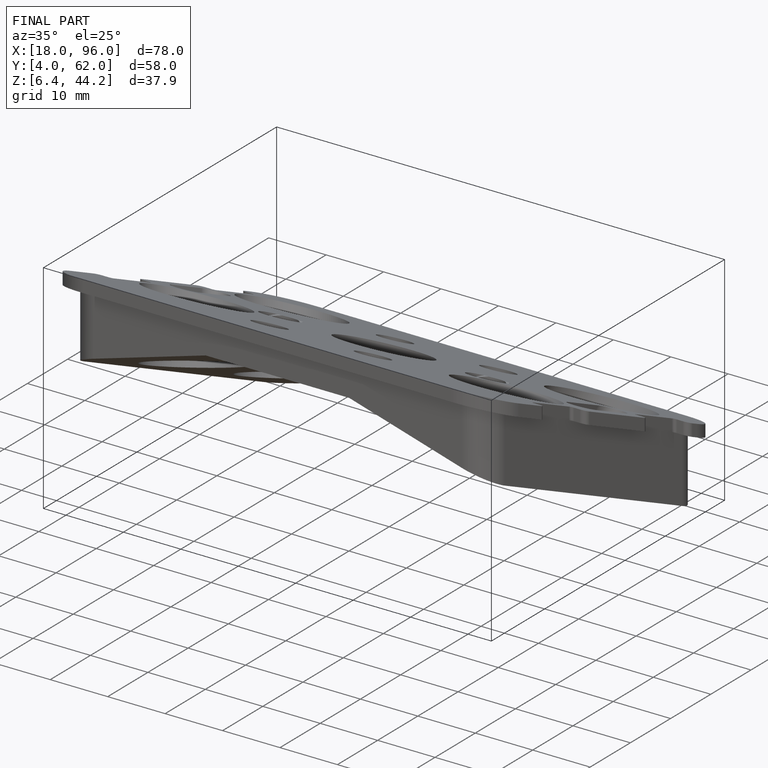
[diagram: finished part — iso view with bounding-box wireframe]
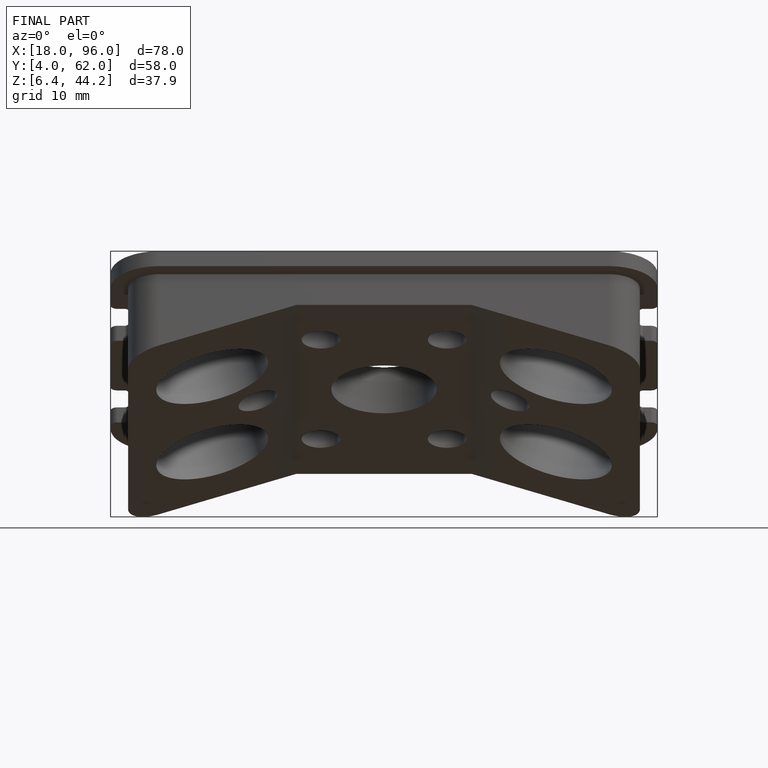
[diagram: finished part — front view with bounding-box wireframe]
